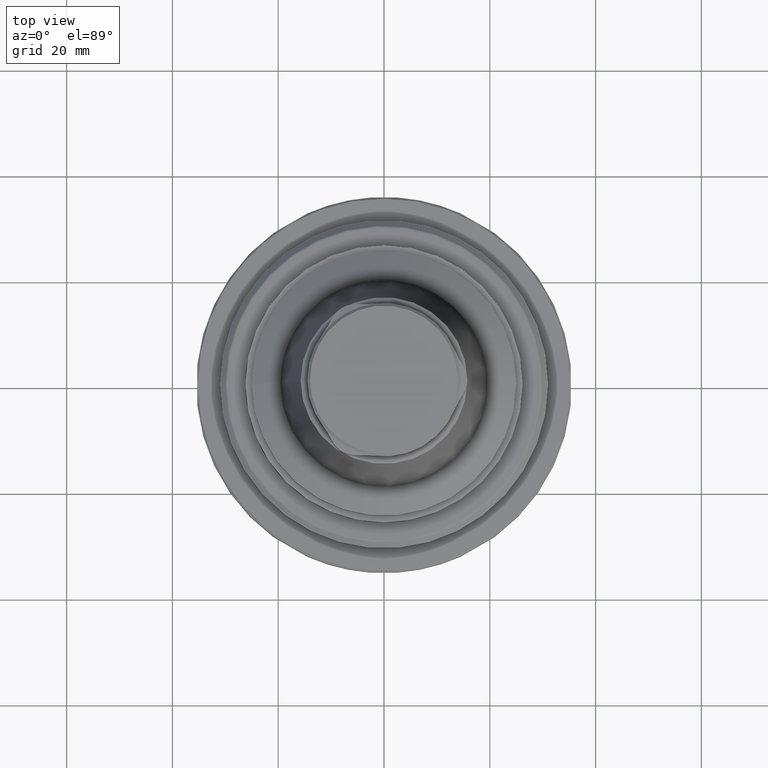
[diagram: clean part render]
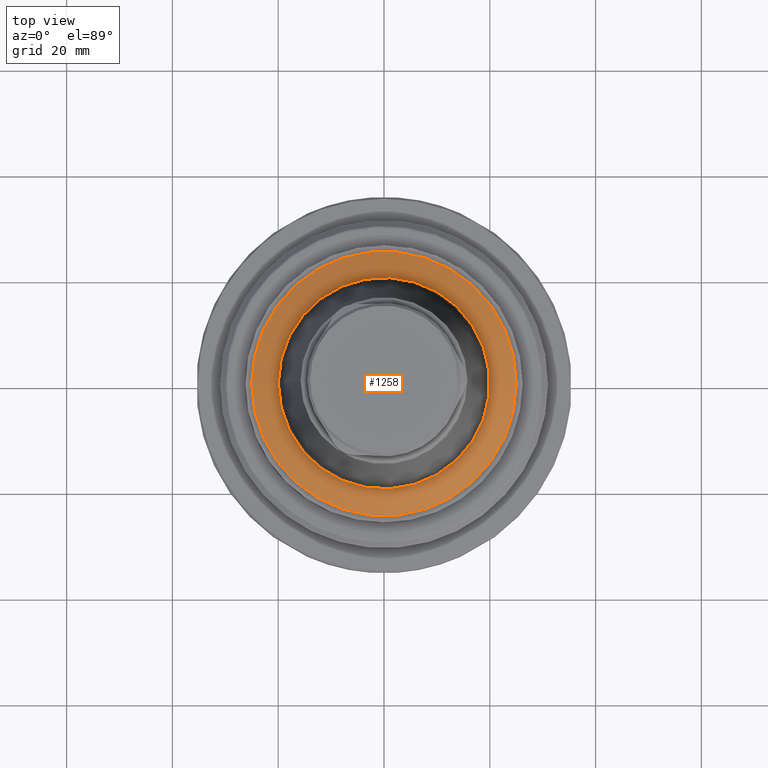
[diagram: same view with one face highlighted and labeled with its STEP entity id]
A machine part, top view. The second image highlights one B-rep face of the part: STEP entity #1258.
In plain terms, the highlighted conical surface has half-angle 60 deg.
Its self-contained STEP definition (entity closure, byte-faithful):
#160=CONICAL_SURFACE('',#1409,25.,1.0471975511966);
#397=ORIENTED_EDGE('',*,*,#636,.T.);
#398=ORIENTED_EDGE('',*,*,#637,.F.);
#636=EDGE_CURVE('',#774,#774,#870,.T.);
#637=EDGE_CURVE('',#775,#775,#871,.T.);
#774=VERTEX_POINT('',#2198);
#775=VERTEX_POINT('',#2201);
#870=CIRCLE('',#1408,19.9770526580503);
#871=CIRCLE('',#1410,25.);
#981=EDGE_LOOP('',(#397));
#982=EDGE_LOOP('',(#398));
#1114=FACE_BOUND('',#981,.T.);
#1115=FACE_BOUND('',#982,.T.);
#1258=ADVANCED_FACE('',(#1114,#1115),#160,.T.);
#1408=AXIS2_PLACEMENT_3D('',#2197,#1706,#1707);
#1409=AXIS2_PLACEMENT_3D('',#2199,#1708,#1709);
#1410=AXIS2_PLACEMENT_3D('',#2200,#1710,#1711);
#1706=DIRECTION('',(5.35909541760885E-17,-6.68035657486175E-33,-1.));
#1707=DIRECTION('',(-1.,6.12303176911189E-17,-5.35909541760885E-17));
#1708=DIRECTION('',(5.35909541760885E-17,-6.68035657486175E-33,-1.));
#1709=DIRECTION('',(-1.,6.12303176911189E-17,-5.35909541760885E-17));
#1710=DIRECTION('',(5.35909541760885E-17,-6.68035657486175E-33,-1.));
#1711=DIRECTION('',(-1.,6.12303176911189E-17,-5.35909541760885E-17));
#2197=CARTESIAN_POINT('',(1.13370528897619E-14,-2.64542120364525E-31,15.398889300107));
#2198=CARTESIAN_POINT('',(-19.9770526580503,1.22320128078463E-15,15.398889300107));
#2199=CARTESIAN_POINT('',(1.14924666568726E-14,-2.83915154431625E-31,12.498889300107));
#2200=CARTESIAN_POINT('',(1.14924666568726E-14,-2.83915154431625E-31,12.498889300107));
#2201=CARTESIAN_POINT('',(-25.,1.53075794227797E-15,12.498889300107));